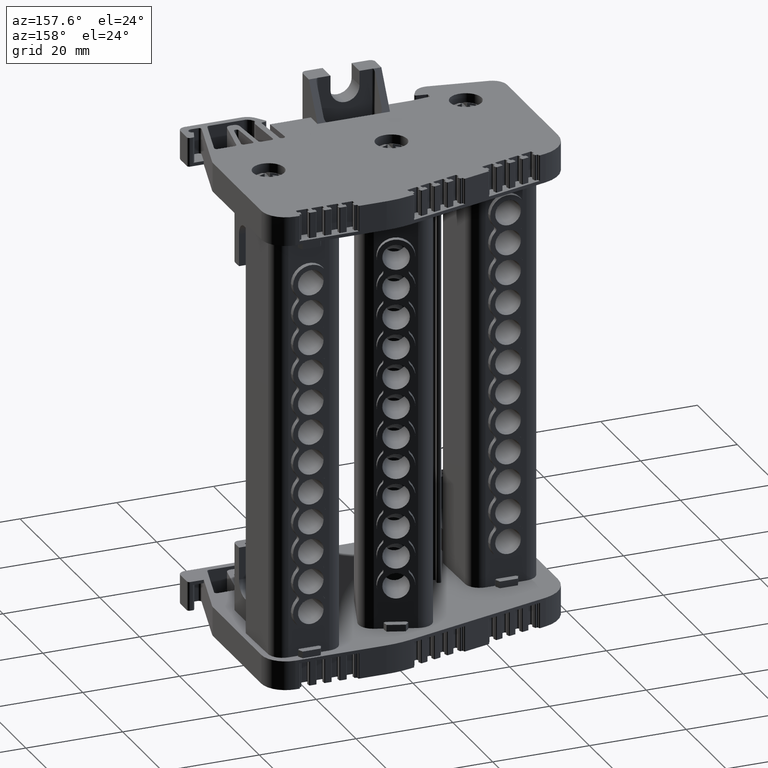
[diagram: clean part render]
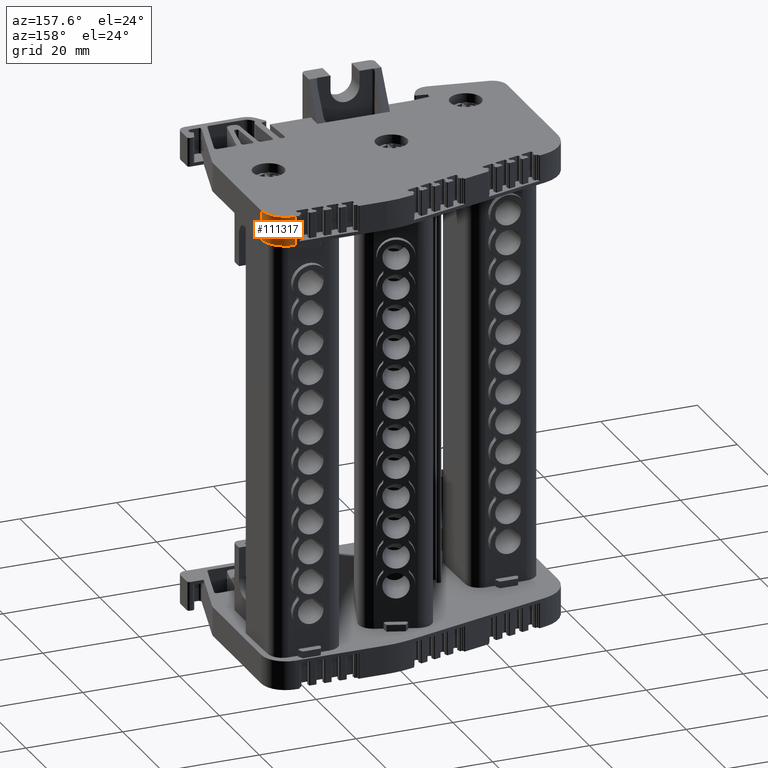
[diagram: same view with one face highlighted and labeled with its STEP entity id]
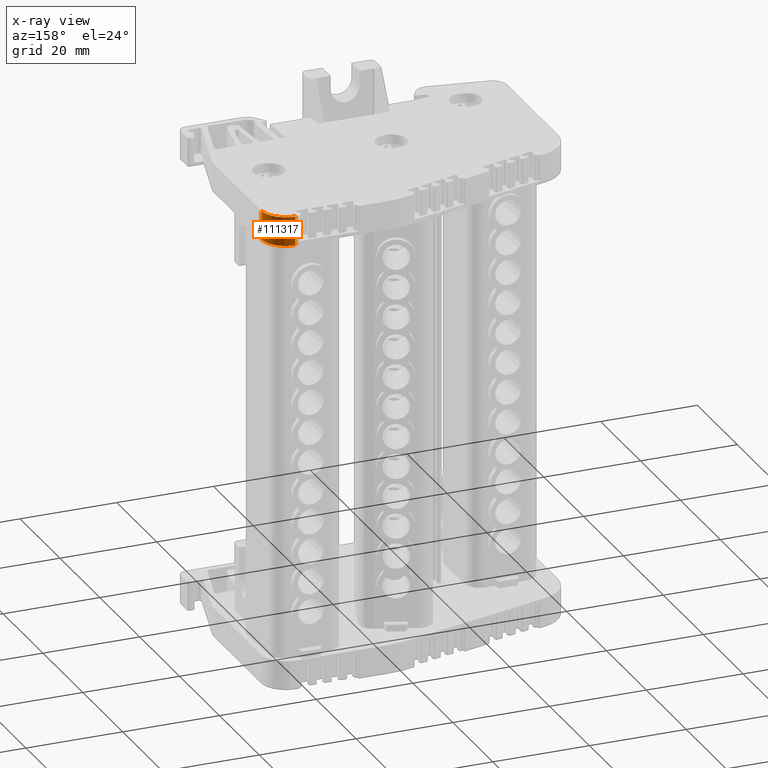
[diagram: x-ray of the same camera — body ghosted, the highlighted face saturated]
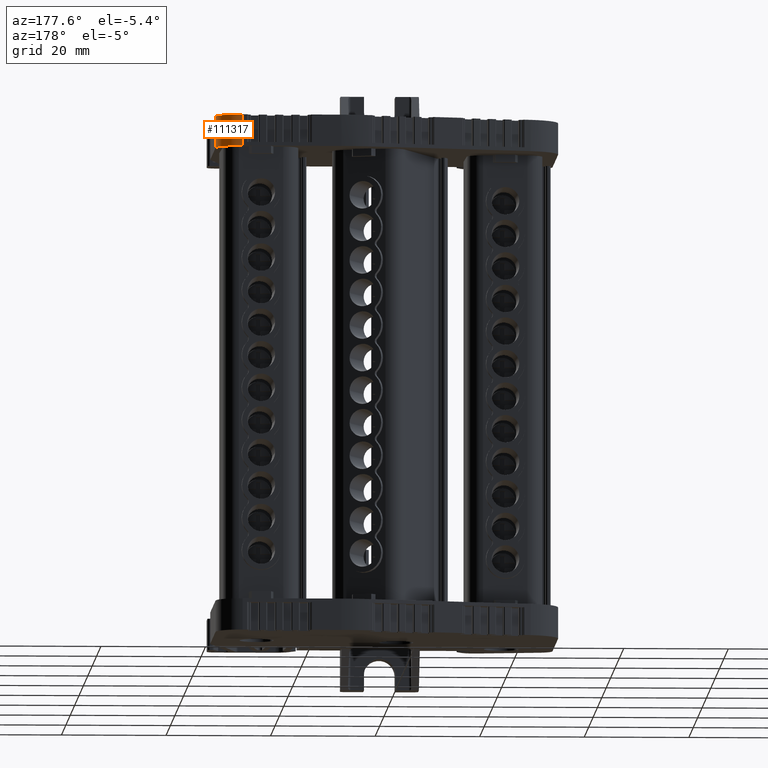
[diagram: same view with one face highlighted and labeled with its STEP entity id]
A machine part, auxiliary view. The second image highlights one B-rep face of the part: STEP entity #111317.
The next image is the same camera in x-ray: the body ghosted, the highlighted face saturated — about 0% of this face is hidden behind the body in this view.
A second angle (auxiliary view) of the same face is appended — the face is thin or edge-on in the first view.
In plain terms, the highlighted cylindrical surface (edge-blend (fillet) strip) has radius 5.0004 mm, axis along (-0, -0, -1).
Its self-contained STEP definition (entity closure, byte-faithful):
#6153 = LINE ( 'NONE', #6174, #29134 ) ;
#6174 = CARTESIAN_POINT ( 'NONE',  ( -269.9007457128343500, 234.0724463838862400, 187.3439306799941700 ) ) ;
#6175 = DIRECTION ( 'NONE',  ( -0.0000000000000000000, -6.891400851611630800E-015, -1.000000000000000000 ) ) ;
#6360 = CARTESIAN_POINT ( 'NONE',  ( -264.9003251914149400, 229.0720258624669200, 187.3439306799941400 ) ) ;
#6365 = LINE ( 'NONE', #6360, #29193 ) ;
#6389 = DIRECTION ( 'NONE',  ( -3.956299522033005100E-015, -6.891400851611630800E-015, -1.000000000000000000 ) ) ;
#6450 = DIRECTION ( 'NONE',  ( 0.0000000000000000000, 1.000000000000000000, -5.550648289826283300E-015 ) ) ;
#6472 = CARTESIAN_POINT ( 'NONE',  ( -269.9007457128346900, 229.0720258624662300, 100.3119239351454300 ) ) ;
#6485 = DIRECTION ( 'NONE',  ( 3.956299522033005100E-015, 6.891400851611630800E-015, 1.000000000000000000 ) ) ;
#13057 = CARTESIAN_POINT ( 'NONE',  ( -264.9003251914152800, 229.7265793780893000, 106.3124285608489700 ) ) ;
#13060 = CARTESIAN_POINT ( 'NONE',  ( -269.9007457128343500, 234.0724463838856800, 106.3124285608489600 ) ) ;
#13062 = CARTESIAN_POINT ( 'NONE',  ( -265.9020752238080800, 232.1450178923998400, 106.3124285608489400 ) ) ;
#13087 = CARTESIAN_POINT ( 'NONE',  ( -266.8277536829010600, 233.0706963514927300, 106.3124285608489400 ) ) ;
#13101 = CARTESIAN_POINT ( 'NONE',  ( -265.0304727531207000, 230.3808753548545400, 106.3124285608489600 ) ) ;
#13114 = CARTESIAN_POINT ( 'NONE',  ( -267.3824390284114500, 233.4413252501297200, 106.3124285608489300 ) ) ;
#13118 = CARTESIAN_POINT ( 'NONE',  ( -269.2461921972114900, 234.0724463838855900, 106.3124285608489400 ) ) ;
#13121 = CARTESIAN_POINT ( 'NONE',  ( -264.9003251914150500, 229.0720258624663800, 106.3124285608489700 ) ) ;
#13130 = CARTESIAN_POINT ( 'NONE',  ( -265.5314463251710900, 231.5903325468892100, 106.3124285608489600 ) ) ;
#13131 = CARTESIAN_POINT ( 'NONE',  ( -268.5918962204460700, 233.9422988221802500, 106.3124285608489600 ) ) ;
#13941 = CARTESIAN_POINT ( 'NONE',  ( -269.9007457128345200, 234.0724463838856500, 100.3119239351454000 ) ) ;
#13993 = CARTESIAN_POINT ( 'NONE',  ( -264.9003251914150500, 229.0720258624662900, 100.3119239351454200 ) ) ;
#29134 = VECTOR ( 'NONE', #6175, 1000.000000000000000 ) ;
#29193 = VECTOR ( 'NONE', #6389, 1000.000000000000000 ) ;
#29201 = AXIS2_PLACEMENT_3D ( 'NONE', #6472, #6485, #6450 ) ;
#29213 = CIRCLE ( 'NONE', #29201, 5.000420521419412600 ) ;
#39169 = AXIS2_PLACEMENT_3D ( 'NONE', #41140, #41155, #41176 ) ;
#41096 = FACE_OUTER_BOUND ( 'NONE', #55359, .T. ) ;
#41140 = CARTESIAN_POINT ( 'NONE',  ( -269.9007457128343500, 229.0720258624668300, 187.3439306799941700 ) ) ;
#41153 = CYLINDRICAL_SURFACE ( 'NONE', #39169, 5.000420521419412600 ) ;
#41155 = DIRECTION ( 'NONE',  ( -3.956299522033005100E-015, -6.891400851611630800E-015, -1.000000000000000000 ) ) ;
#41176 = DIRECTION ( 'NONE',  ( 0.0000000000000000000, 1.000000000000000000, -5.550648289826283300E-015 ) ) ;
#46700 = CARTESIAN_POINT ( 'NONE',  ( -269.9007457128343500, 234.0724463838856800, 106.3124285608489600 ) ) ;
#46839 = CARTESIAN_POINT ( 'NONE',  ( -264.9003251914150500, 229.0720258624663800, 106.3124285608489700 ) ) ;
#55359 = EDGE_LOOP ( 'NONE', ( #101425, #101394, #101433, #101441 ) ) ;
#70510 = VERTEX_POINT ( 'NONE', #13941 ) ;
#70552 = VERTEX_POINT ( 'NONE', #13993 ) ;
#76316 = EDGE_CURVE ( 'NONE', #116108, #116257, #119765, .T. ) ;
#84558 = EDGE_CURVE ( 'NONE', #116108, #70510, #6153, .T. ) ;
#84607 = EDGE_CURVE ( 'NONE', #116257, #70552, #6365, .T. ) ;
#84633 = EDGE_CURVE ( 'NONE', #70552, #70510, #29213, .T. ) ;
#101394 = ORIENTED_EDGE ( 'NONE', *, *, #76316, .T. ) ;
#101425 = ORIENTED_EDGE ( 'NONE', *, *, #84558, .F. ) ;
#101433 = ORIENTED_EDGE ( 'NONE', *, *, #84607, .T. ) ;
#101441 = ORIENTED_EDGE ( 'NONE', *, *, #84633, .T. ) ;
#111317 = ADVANCED_FACE ( 'NONE', ( #41096 ), #41153, .T. ) ;
#116108 = VERTEX_POINT ( 'NONE', #46700 ) ;
#116257 = VERTEX_POINT ( 'NONE', #46839 ) ;
#119765 = B_SPLINE_CURVE_WITH_KNOTS ( 'NONE', 3,
 ( #13060, #13118, #13131, #13114, #13087, #13062, #13130, #13101, #13057, #13121 ),
 .UNSPECIFIED., .F., .F.,
 ( 4, 2, 2, 2, 4 ),
 ( 0.0000000000000000000, 0.2500000000000000000, 0.5000000000000000000, 0.7500000000000000000, 1.000000000000000000 ),
 .UNSPECIFIED. ) ;